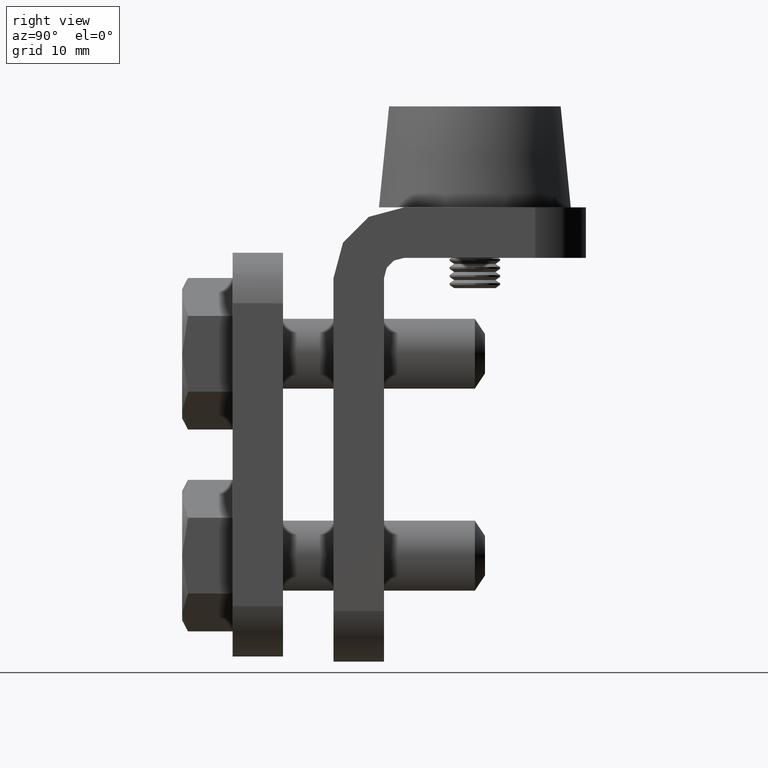
[diagram: clean part render]
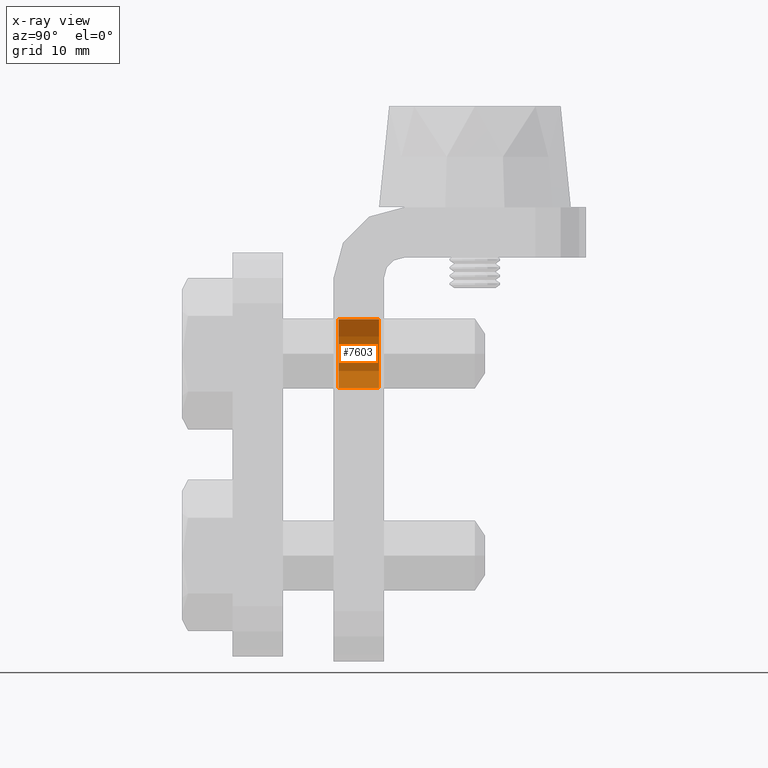
[diagram: x-ray — body ghosted, one internal face saturated and labeled with its STEP entity id]
A machine part, right view, then the same camera in x-ray: the body is ghosted and one INTERNAL B-rep face — a face not visible from any outside direction — is saturated and labeled: STEP entity #7603.
In plain terms, the highlighted cylindrical surface (edge-blend (fillet) strip) has radius 3.4 mm, axis along (-0, -1, -0).
Its self-contained STEP definition (entity closure, byte-faithful):
#160 = CARTESIAN_POINT ( 'NONE',  ( 0.000000000000000000, 4.499999999999998224, 27.10000000000000142 ) ) ;
#688 = ORIENTED_EDGE ( 'NONE', *, *, #3231, .F. ) ;
#855 = EDGE_CURVE ( 'NONE', #16192, #7779, #8885, .T. ) ;
#1126 = CARTESIAN_POINT ( 'NONE',  ( 0.000000000000000000, 0.000000000000000000, 27.10000000000000142 ) ) ;
#1653 = ORIENTED_EDGE ( 'NONE', *, *, #11262, .T. ) ;
#2140 = CIRCLE ( 'NONE', #15278, 3.400000000000000355 ) ;
#2192 = DIRECTION ( 'NONE',  ( -0.000000000000000000, -1.000000000000000000, -0.000000000000000000 ) ) ;
#2248 = CARTESIAN_POINT ( 'NONE',  ( 0.000000000000000000, 0.000000000000000000, 30.50000000000000000 ) ) ;
#3005 = CYLINDRICAL_SURFACE ( 'NONE', #9189, 3.399999999999996803 ) ;
#3120 = VECTOR ( 'NONE', #12063, 1000.000000000000000 ) ;
#3231 = EDGE_CURVE ( 'NONE', #7016, #4264, #10596, .T. ) ;
#3991 = CARTESIAN_POINT ( 'NONE',  ( 0.000000000000000000, 0.5000000000000225375, 27.10000000000000142 ) ) ;
#4264 = VERTEX_POINT ( 'NONE', #3991 ) ;
#4411 = CARTESIAN_POINT ( 'NONE',  ( 4.163799117100992671E-16, 0.5000000000000225375, 33.89999999999999858 ) ) ;
#4790 = EDGE_CURVE ( 'NONE', #7779, #4264, #2140, .T. ) ;
#5934 = CARTESIAN_POINT ( 'NONE',  ( 4.163799117100997108E-16, 0.000000000000000000, 33.89999999999999858 ) ) ;
#7016 = VERTEX_POINT ( 'NONE', #160 ) ;
#7603 = ADVANCED_FACE ( 'NONE', ( #9855 ), #3005, .F. ) ;
#7779 = VERTEX_POINT ( 'NONE', #4411 ) ;
#8208 = ORIENTED_EDGE ( 'NONE', *, *, #855, .T. ) ;
#8428 = DIRECTION ( 'NONE',  ( 0.000000000000000000, 0.000000000000000000, 1.000000000000000000 ) ) ;
#8681 = DIRECTION ( 'NONE',  ( 0.000000000000000000, -1.000000000000000000, 0.000000000000000000 ) ) ;
#8885 = LINE ( 'NONE', #5934, #3120 ) ;
#9189 = AXIS2_PLACEMENT_3D ( 'NONE', #2248, #2192, #16292 ) ;
#9558 = DIRECTION ( 'NONE',  ( 0.000000000000000000, 0.000000000000000000, 1.000000000000000000 ) ) ;
#9855 = FACE_OUTER_BOUND ( 'NONE', #16005, .T. ) ;
#10409 = ORIENTED_EDGE ( 'NONE', *, *, #4790, .T. ) ;
#10596 = LINE ( 'NONE', #1126, #13050 ) ;
#11262 = EDGE_CURVE ( 'NONE', #7016, #16192, #18248, .T. ) ;
#12063 = DIRECTION ( 'NONE',  ( -0.000000000000000000, -1.000000000000000000, -0.000000000000000000 ) ) ;
#13050 = VECTOR ( 'NONE', #13903, 1000.000000000000000 ) ;
#13903 = DIRECTION ( 'NONE',  ( -0.000000000000000000, -1.000000000000000000, -0.000000000000000000 ) ) ;
#15278 = AXIS2_PLACEMENT_3D ( 'NONE', #16502, #8681, #8428 ) ;
#16005 = EDGE_LOOP ( 'NONE', ( #1653, #8208, #10409, #688 ) ) ;
#16192 = VERTEX_POINT ( 'NONE', #16203 ) ;
#16203 = CARTESIAN_POINT ( 'NONE',  ( 4.163799117100992671E-16, 4.499999999999998224, 33.89999999999999858 ) ) ;
#16292 = DIRECTION ( 'NONE',  ( 0.000000000000000000, 0.000000000000000000, -1.000000000000000000 ) ) ;
#16502 = CARTESIAN_POINT ( 'NONE',  ( 0.000000000000000000, 0.5000000000000225375, 30.50000000000000000 ) ) ;
#17971 = DIRECTION ( 'NONE',  ( 0.000000000000000000, 1.000000000000000000, 0.000000000000000000 ) ) ;
#18034 = CARTESIAN_POINT ( 'NONE',  ( 0.000000000000000000, 4.499999999999998224, 30.50000000000000000 ) ) ;
#18248 = CIRCLE ( 'NONE', #18345, 3.400000000000000355 ) ;
#18345 = AXIS2_PLACEMENT_3D ( 'NONE', #18034, #17971, #9558 ) ;